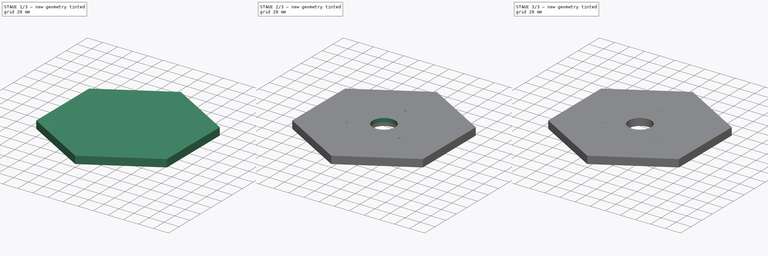
[diagram: build sequence overview — one tinted view per stage of 3, left to right]
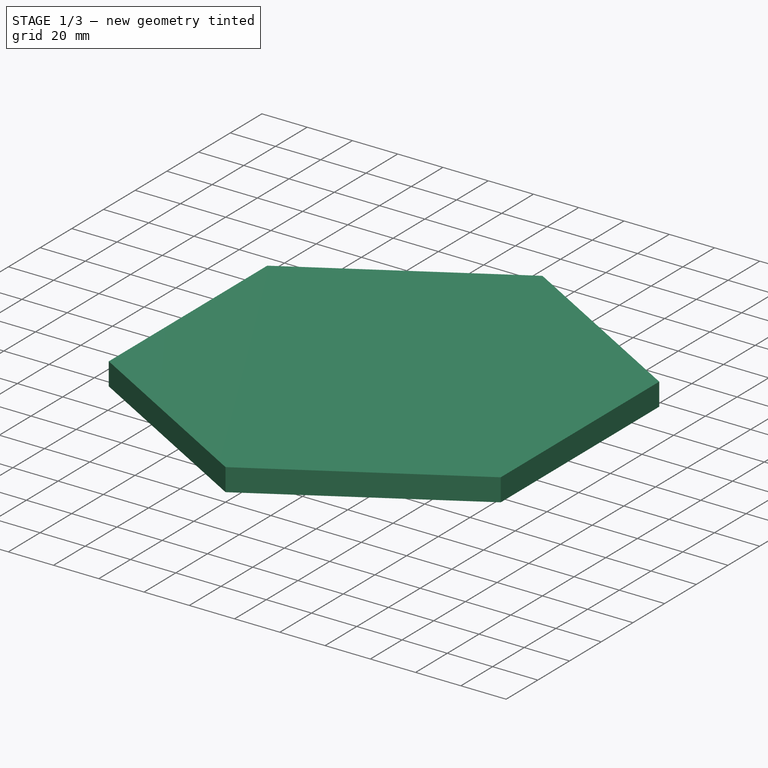
[diagram: stage 1 of 3 — iso view after this stage's code; geometry added in this stage tinted green]
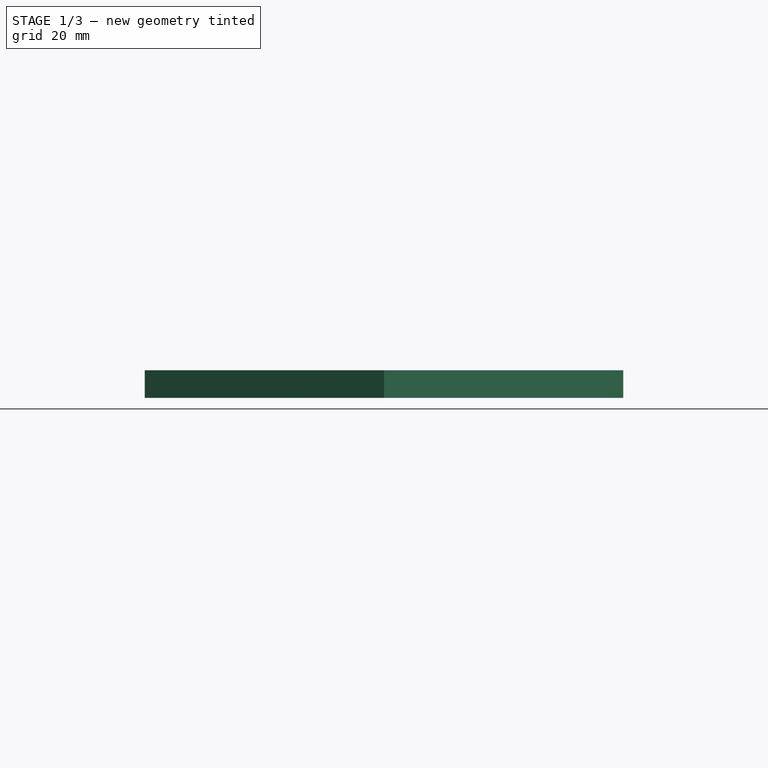
[diagram: stage 1 of 3 — front view after this stage's code; geometry added in this stage tinted green]
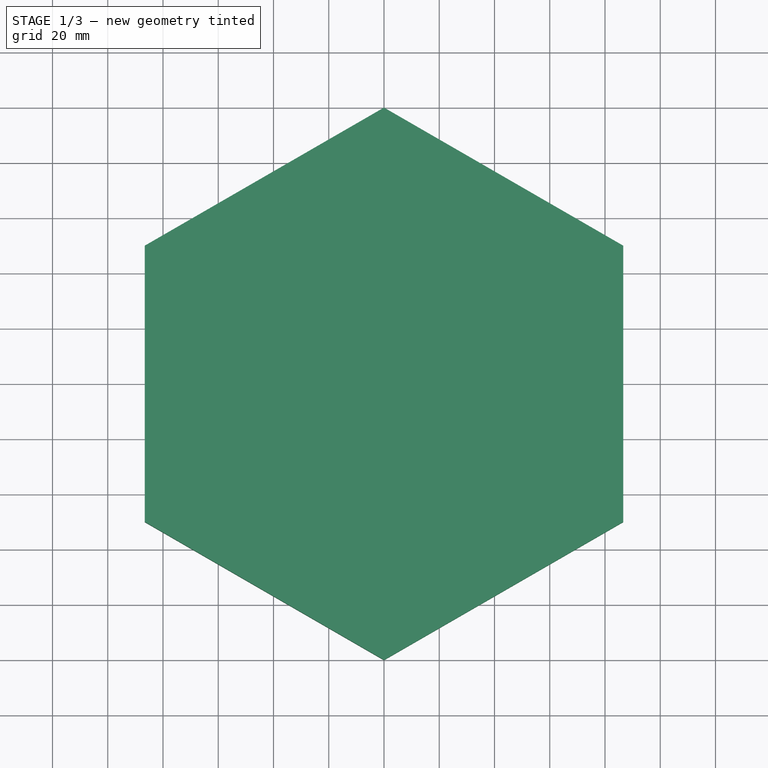
[diagram: stage 1 of 3 — top view after this stage's code; geometry added in this stage tinted green]
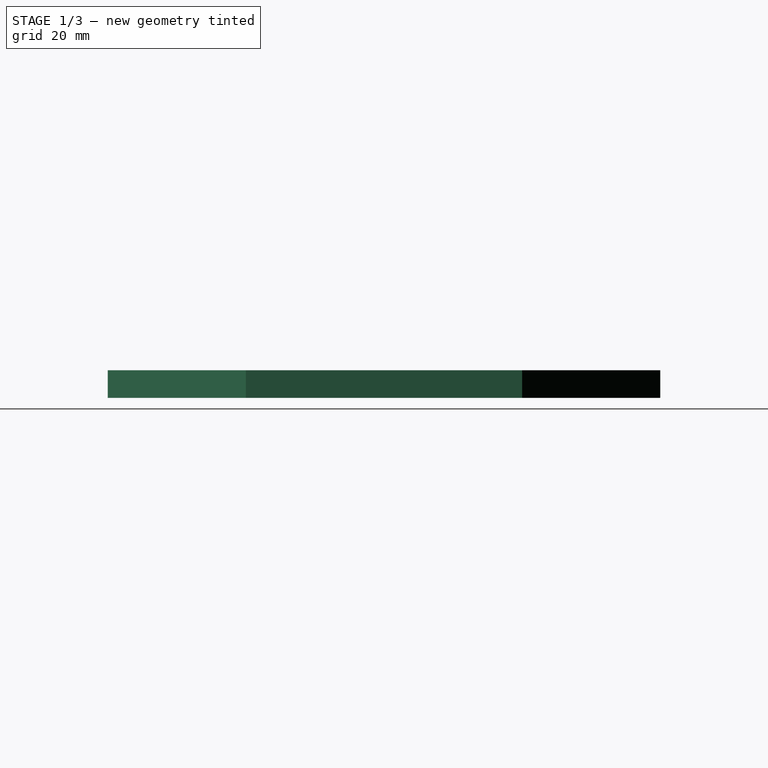
[diagram: stage 1 of 3 — right view after this stage's code; geometry added in this stage tinted green]
FCSTD DOCUMENT  (FreeCAD 0.20R29177 +426 (Git))
Label: middle_hexagon_bottom
License: All rights reserved
LicenseURL: http://en.wikipedia.org/wiki/All_rights_reserved
objects: Sketcher::SketchObject×6, PartDesign::Hole×3, PartDesign::Pocket×2, PartDesign::Pad×1, PartDesign::Body×1
note: 19 computed .brp shape members not serialized (recipe doc carries the construction recipe); baked Part::Feature solids carry a one-line shape summary decoded from their .brp

FEATURE [Sketcher::SketchObject] Sketch007
  FullyConstrained = true
  MapMode = 5
  sketch-geometry (7):
    g0: LineSegment StartX=86.6025 StartY=50 StartZ=0 EndX=-1.42e-14 EndY=100 EndZ=0
    g1: LineSegment StartX=-1.42e-14 StartY=100 StartZ=0 EndX=-86.6025 EndY=50 EndZ=0
    g2: LineSegment StartX=-86.6025 StartY=50 StartZ=0 EndX=-86.6025 EndY=-50 EndZ=0
    g3: LineSegment StartX=-86.6025 StartY=-50 StartZ=0 EndX=0 EndY=-100 EndZ=0
    g4: LineSegment StartX=0 StartY=-100 StartZ=0 EndX=86.6025 EndY=-50 EndZ=0
    g5: LineSegment StartX=86.6025 StartY=-50 StartZ=0 EndX=86.6025 EndY=50 EndZ=0
    g6: Circle CenterX=0 CenterY=0 CenterZ=0 NormalX=0 NormalY=0 NormalZ=1 AngleXU=0 Radius=100
  constraints (16):
    c: Coincident(g0,g1)
    c: Coincident(g1,g2)
    c: Coincident(g2,g3)
    c: Coincident(g3,g4)
    c: Coincident(g4,g5)
    c: Coincident(g5,g0)
    c: Equal(g0, g1-g5) x5
    c: PointOnObject(g0,g6)
    c: PointOnObject(g1,g6)
    c: PointOnObject(g2,g6)
    c: PointOnObject(g3,g6)
    c: PointOnObject(g4,g6)
    c: PointOnObject(g5,g6)
    c: Coincident(g6,g-1)
    c: PointOnObject(g3,g-2)
    c: DistanceY(g5,g5) = 100
FEATURE [PartDesign::Pad] Pad002
  Direction = (0,0,1)
  Length = 10
  Length2 = 10
  Profile = -> Sketch007
  ReferenceAxis = -> Sketch007 [N_Axis]
  Refine = true
  Type = 0
FEATURE [Sketcher::SketchObject] Sketch008  label="lock001"
  FullyConstrained = true
  MapMode = 5
  Placement = pos=(0,0,10) rot=(0,0,1;0rad)
  sketch-geometry (1):
    g0: Circle CenterX=0 CenterY=0 CenterZ=0 NormalX=0 NormalY=0 NormalZ=1 AngleXU=0 Radius=15
  constraints (2):
    c: Coincident(g0,g-1)
    c: Diameter(g0) = 30
FEATURE [Sketcher::SketchObject] Sketch009  label="press-fit"
  FullyConstrained = true
  MapMode = 5
  Placement = pos=(0,0,0) rot=(1,0,0;3.14159rad)
  sketch-geometry (1):
    g0: Circle CenterX=0 CenterY=0 CenterZ=0 NormalX=0 NormalY=0 NormalZ=1 AngleXU=0 Radius=15.975
  constraints (2):
    c: Coincident(g0,g-1)
    c: Diameter(g0) = 31.95
FEATURE [PartDesign::Pocket] Pocket007
  BaseFeature = -> Pad002
  Direction = (0,0,1)
  Length = 5
  Length2 = 5
  Profile = -> Sketch009
  ReferenceAxis = -> Sketch009 [N_Axis]
  Refine = true
  Type = 0
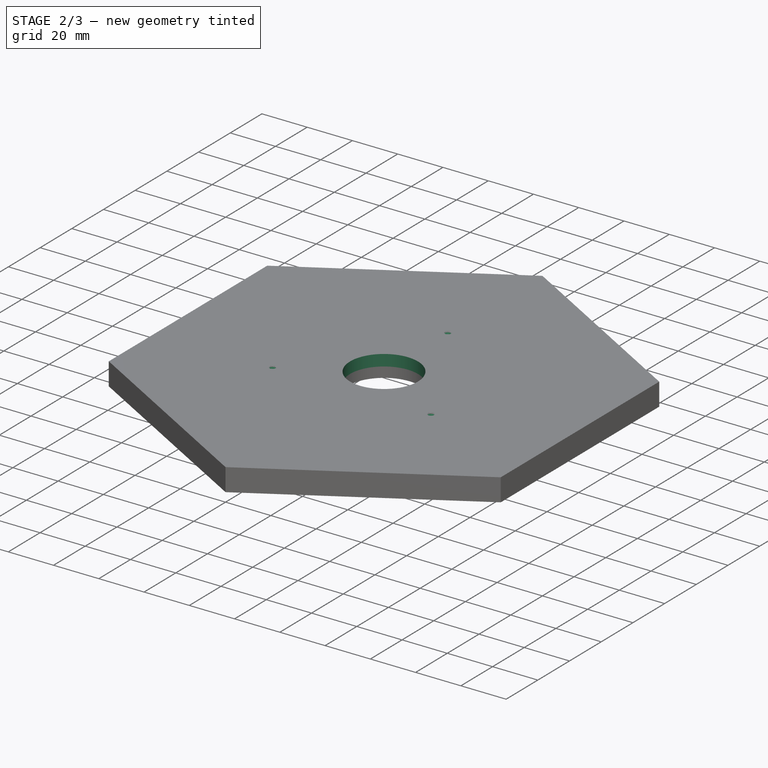
[diagram: stage 2 of 3 — iso view after this stage's code; geometry added in this stage tinted green]
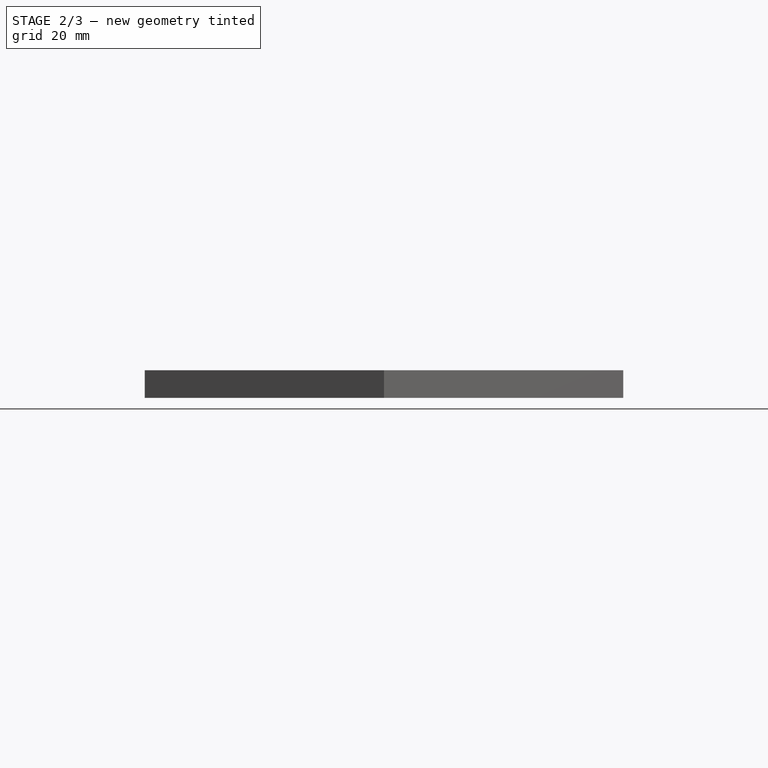
[diagram: stage 2 of 3 — front view after this stage's code; geometry added in this stage tinted green]
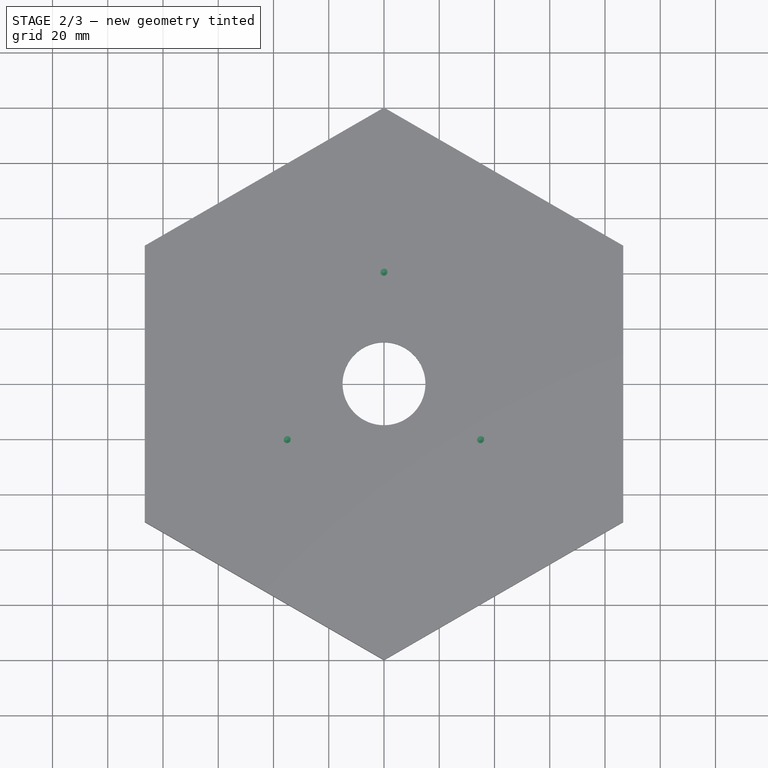
[diagram: stage 2 of 3 — top view after this stage's code; geometry added in this stage tinted green]
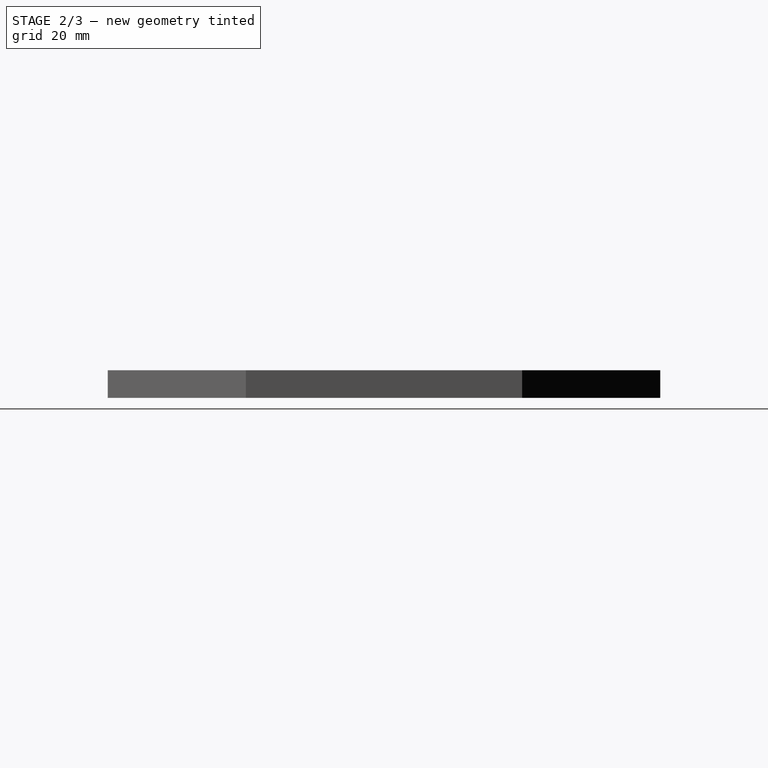
[diagram: stage 2 of 3 — right view after this stage's code; geometry added in this stage tinted green]
FEATURE [PartDesign::Pocket] Pocket008
  BaseFeature = -> Pocket007
  Direction = (0,0,-1)
  Length = 5
  Length2 = 5
  Profile = -> Sketch008
  ReferenceAxis = -> Sketch008 [N_Axis]
  Refine = true
  Type = 0
FEATURE [Sketcher::SketchObject] Sketch024
  FullyConstrained = true
  MapMode = 5
  Placement = pos=(0,0,10) rot=(0,0,1;0rad)
  sketch-geometry (7):
    g0: LineSegment StartX=35 StartY=-20.2073 StartZ=0 EndX=0 EndY=40.4145 EndZ=0
    g1: LineSegment StartX=0 StartY=40.4145 StartZ=0 EndX=-35 EndY=-20.2073 EndZ=0
    g2: LineSegment StartX=-35 StartY=-20.2073 StartZ=0 EndX=35 EndY=-20.2073 EndZ=0
    g3: Circle CenterX=0 CenterY=0 CenterZ=0 NormalX=0 NormalY=0 NormalZ=1 AngleXU=0 Radius=40.4145
    g4: Circle CenterX=35 CenterY=-20.2073 CenterZ=0 NormalX=0 NormalY=0 NormalZ=1 AngleXU=0 Radius=3
    g5: Circle CenterX=0 CenterY=40.4145 CenterZ=0 NormalX=0 NormalY=0 NormalZ=1 AngleXU=0 Radius=3
    g6: Circle CenterX=-35 CenterY=-20.2073 CenterZ=0 NormalX=0 NormalY=0 NormalZ=1 AngleXU=0 Radius=3
  constraints (17):
    c: Coincident(g0,g1)
    c: Coincident(g1,g2)
    c: Coincident(g2,g0)
    c: Equal(g0,g1)
    c: Equal(g0,g2)
    c: PointOnObject(g0,g3)
    c: PointOnObject(g1,g3)
    c: PointOnObject(g2,g3)
    c: Coincident(g3,g-1)
    c: PointOnObject(g0,g-2)
    c: DistanceX(g2,g2) = 70
    c: Coincident(g4,g0)
    c: Diameter(g4) = 6
    c: Coincident(g5,g0)
    c: Coincident(g6,g1)
    c: Equal(g6,g5)
    c: Equal(g5,g4)
FEATURE [PartDesign::Hole] Hole004
  BaseFeature = -> Pocket008
  CustomThreadClearance = 0
  Depth = 7
  DepthType = 0
  Diameter = 2.52
  DrillForDepth = true
  DrillPoint = 1
  DrillPointAngle = 118
  HoleCutCountersinkAngle = 90
  HoleCutCustomValues = false
  HoleCutDepth = 0
  HoleCutDiameter = 6.1
  HoleCutType = 0
  ModelThread = true
  Profile = -> Sketch024
  Refine = true
  Tapered = false
  TaperedAngle = 90
  ThreadClass = 0
  ThreadDepth = 7
  ThreadDepthType = 0
  ThreadDirection = 0
  ThreadFit = 0
  ThreadSize = 9
  ThreadType = 1
  Threaded = true
  UseCustomThreadClearance = false
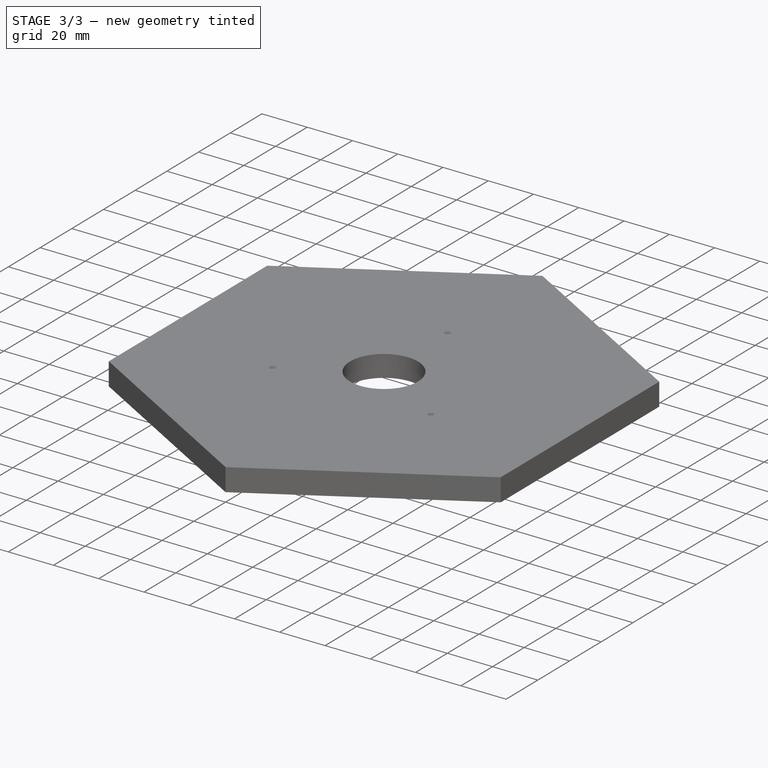
[diagram: stage 3 of 3 — iso view after this stage's code; geometry added in this stage tinted green]
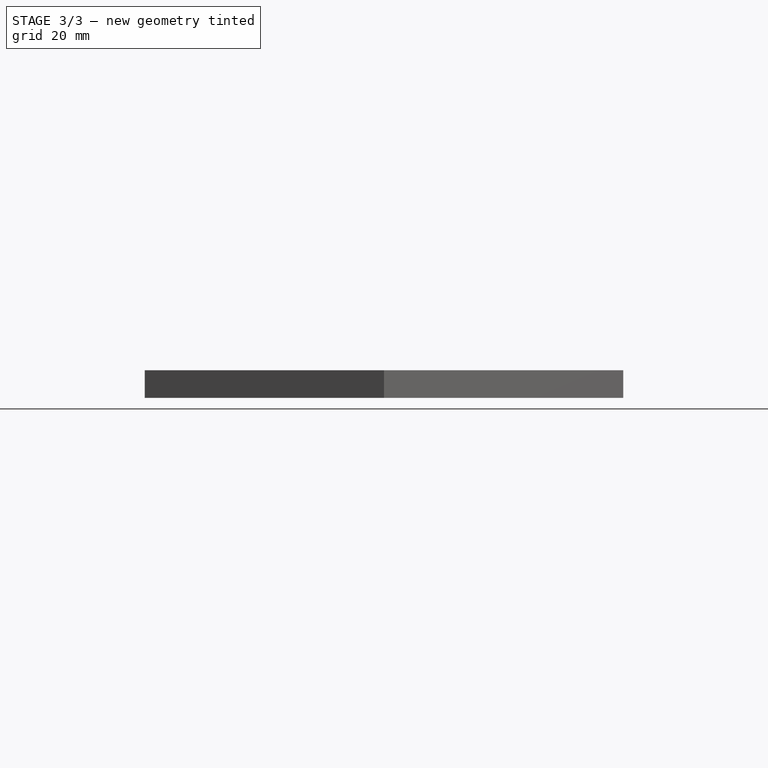
[diagram: stage 3 of 3 — front view after this stage's code; geometry added in this stage tinted green]
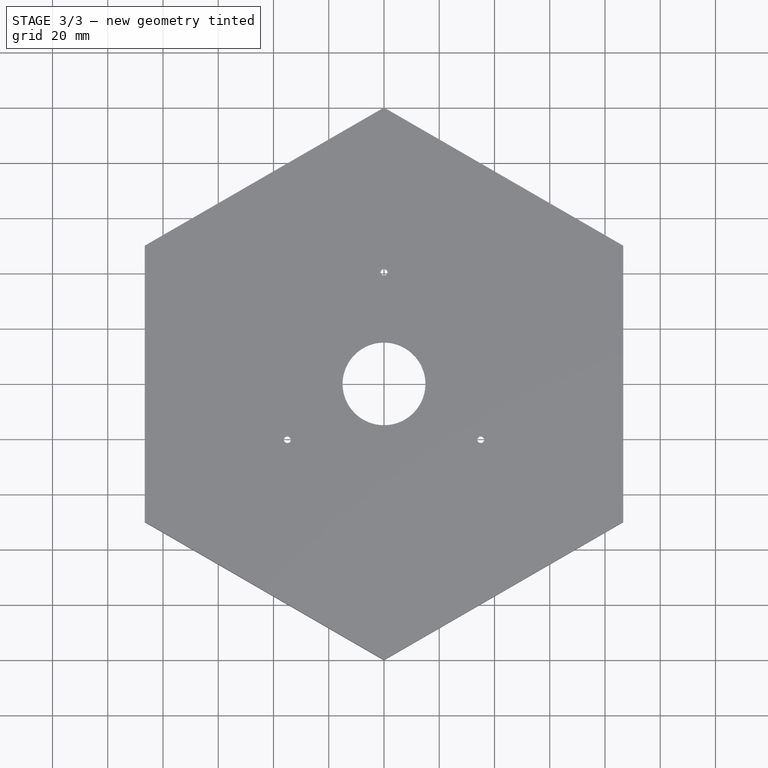
[diagram: stage 3 of 3 — top view after this stage's code; geometry added in this stage tinted green]
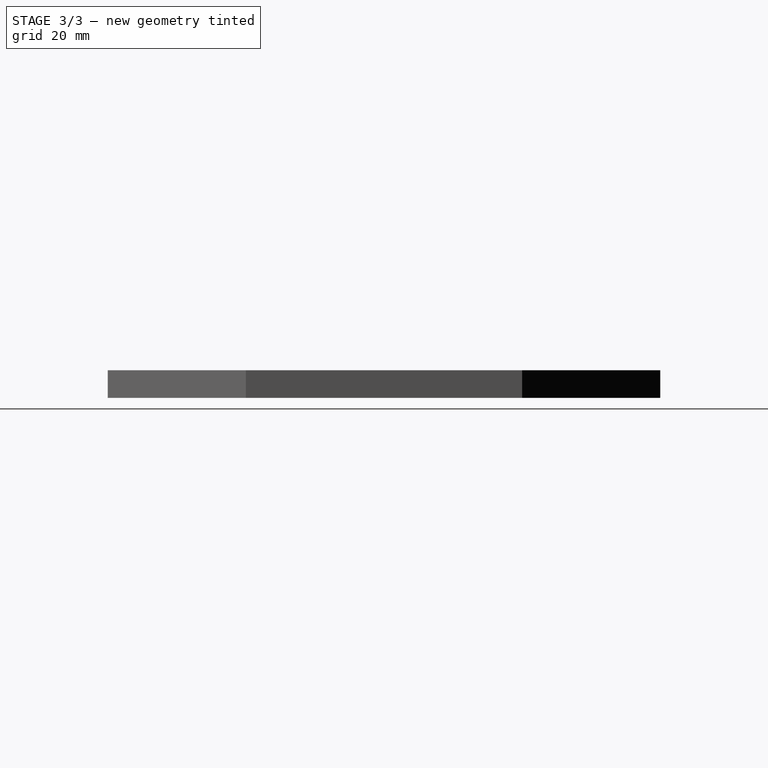
[diagram: stage 3 of 3 — right view after this stage's code; geometry added in this stage tinted green]
FEATURE [Sketcher::SketchObject] Sketch066
  FullyConstrained = true
  MapMode = 5
  Placement = pos=(0,0,0) rot=(1,0,0;3.14159rad)
  Support = -> [Hole004]
  sketch-geometry (7):
    g0: LineSegment StartX=35 StartY=-20.2073 StartZ=0 EndX=0 EndY=40.4145 EndZ=0
    g1: LineSegment StartX=0 StartY=40.4145 StartZ=0 EndX=-35 EndY=-20.2073 EndZ=0
    g2: LineSegment StartX=-35 StartY=-20.2073 StartZ=0 EndX=35 EndY=-20.2073 EndZ=0
    g3: Circle CenterX=0 CenterY=0 CenterZ=0 NormalX=0 NormalY=0 NormalZ=1 AngleXU=0 Radius=40.4145
    g4: Circle CenterX=35 CenterY=-20.2073 CenterZ=0 NormalX=0 NormalY=0 NormalZ=1 AngleXU=0 Radius=3
    g5: Circle CenterX=0 CenterY=40.4145 CenterZ=0 NormalX=0 NormalY=0 NormalZ=1 AngleXU=0 Radius=3
    g6: Circle CenterX=-35 CenterY=-20.2073 CenterZ=0 NormalX=0 NormalY=0 NormalZ=1 AngleXU=0 Radius=3
  constraints (17):
    c: Coincident(g0,g1)
    c: Coincident(g1,g2)
    c: Coincident(g2,g0)
    c: Equal(g0,g1)
    c: Equal(g0,g2)
    c: PointOnObject(g0,g3)
    c: PointOnObject(g1,g3)
    c: PointOnObject(g2,g3)
    c: Coincident(g3,g-1)
    c: PointOnObject(g0,g-2)
    c: DistanceX(g2,g2) = 70
    c: Coincident(g4,g0)
    c: Coincident(g5,g0)
    c: Coincident(g6,g1)
    c: Equal(g6,g4)
    c: Equal(g4,g5)
    c: Diameter(g5) = 6
FEATURE [PartDesign::Hole] Hole005
  BaseFeature = -> Hole004
  CustomThreadClearance = 0
  Depth = 7
  DepthType = 0
  Diameter = 2.52
  DrillForDepth = true
  DrillPoint = 1
  DrillPointAngle = 118
  HoleCutCountersinkAngle = 90
  HoleCutCustomValues = false
  HoleCutDepth = 0
  HoleCutDiameter = 6.1
  HoleCutType = 0
  ModelThread = true
  Profile = -> Sketch066
  Refine = true
  Tapered = false
  TaperedAngle = 90
  ThreadClass = 0
  ThreadDepth = 7
  ThreadDepthType = 0
  ThreadDirection = 0
  ThreadFit = 0
  ThreadSize = 9
  ThreadType = 1
  Threaded = true
  UseCustomThreadClearance = false
FEATURE [Sketcher::SketchObject] Sketch070
  FullyConstrained = false
  MapMode = 5
  Placement = pos=(0,0,0) rot=(1,0,0;3.14159rad)
  Support = -> [Hole005]
  sketch-geometry (7):
    g0: LineSegment StartX=35 StartY=20.2073 StartZ=0 EndX=-35 EndY=20.2073 EndZ=0
    g1: LineSegment StartX=-35 StartY=20.2073 StartZ=0 EndX=0 EndY=-40.4145 EndZ=0
    g2: LineSegment StartX=0 StartY=-40.4145 StartZ=0 EndX=35 EndY=20.2073 EndZ=0
    g3: Circle CenterX=0 CenterY=0 CenterZ=0 NormalX=0 NormalY=0 NormalZ=1 AngleXU=0 Radius=40.4145
    g4: Circle CenterX=-35 CenterY=20.2073 CenterZ=0 NormalX=0 NormalY=0 NormalZ=1 AngleXU=0 Radius=3.38129
    g5: Circle CenterX=35 CenterY=20.2073 CenterZ=0 NormalX=0 NormalY=0 NormalZ=1 AngleXU=0 Radius=3.38129
    g6: Circle CenterX=0 CenterY=-40.4145 CenterZ=0 NormalX=0 NormalY=0 NormalZ=1 AngleXU=0 Radius=3.38129
  constraints (16):
    c: Coincident(g0,g1)
    c: Coincident(g1,g2)
    c: Coincident(g2,g0)
    c: Equal(g0,g1)
    c: Equal(g0,g2)
    c: PointOnObject(g0,g3)
    c: PointOnObject(g1,g3)
    c: PointOnObject(g2,g3)
    c: PointOnObject(g1,g-2)
    c: DistanceX(g0,g0) = 70
    c: Coincident(g3,g-1)
    c: Coincident(g4,g0)
    c: Coincident(g5,g0)
    c: Coincident(g6,g1)
    c: Equal(g6,g5)
    c: Equal(g5,g4)
FEATURE [PartDesign::Hole] Hole007
  BaseFeature = -> Hole005
  CustomThreadClearance = 0
  Depth = 7
  DepthType = 0
  Diameter = 2.52
  DrillForDepth = true
  DrillPoint = 1
  DrillPointAngle = 118
  HoleCutCountersinkAngle = 90
  HoleCutCustomValues = false
  HoleCutDepth = 0
  HoleCutDiameter = 6.1
  HoleCutType = 0
  ModelThread = true
  Profile = -> Sketch070
  Refine = true
  Tapered = false
  TaperedAngle = 90
  ThreadClass = 0
  ThreadDepth = 7
  ThreadDepthType = 0
  ThreadDirection = 0
  ThreadFit = 0
  ThreadSize = 9
  ThreadType = 1
  Threaded = true
  UseCustomThreadClearance = false
FEATURE [PartDesign::Body] Body002  label="mid_hexagon_bottom"
  Group = -> [Sketch007,Pad002,Sketch008,Sketch009,Pocket007,Pocket008,Sketch024,Hole004,Sketch066,Hole005,Sketch070,Hole007]
  Origin = -> Origin002
  Placement = pos=(0,0,0) rot=(1,0,0;3.14159rad)
  Tip = -> Hole007
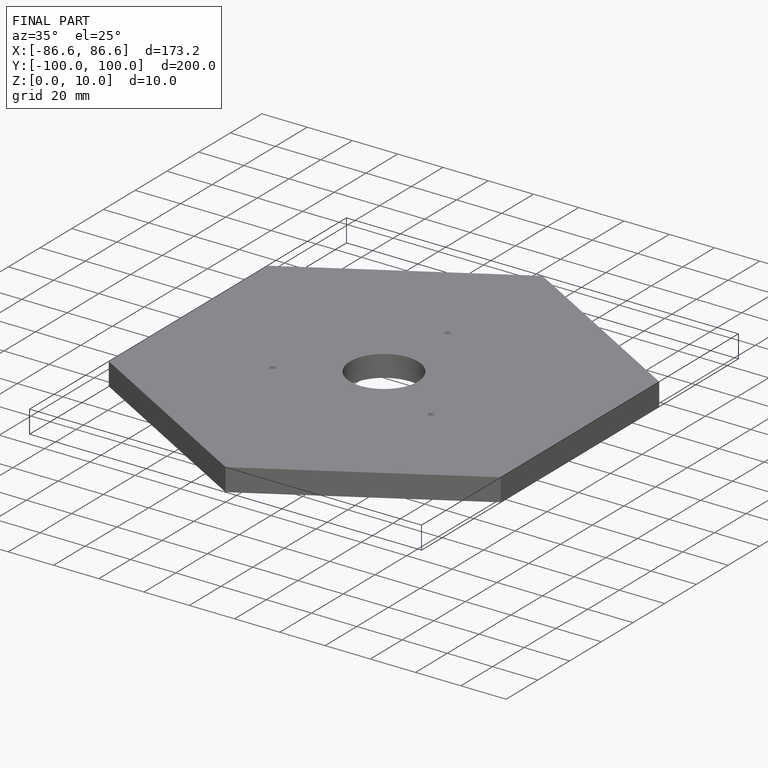
[diagram: finished part — iso view with bounding-box wireframe]
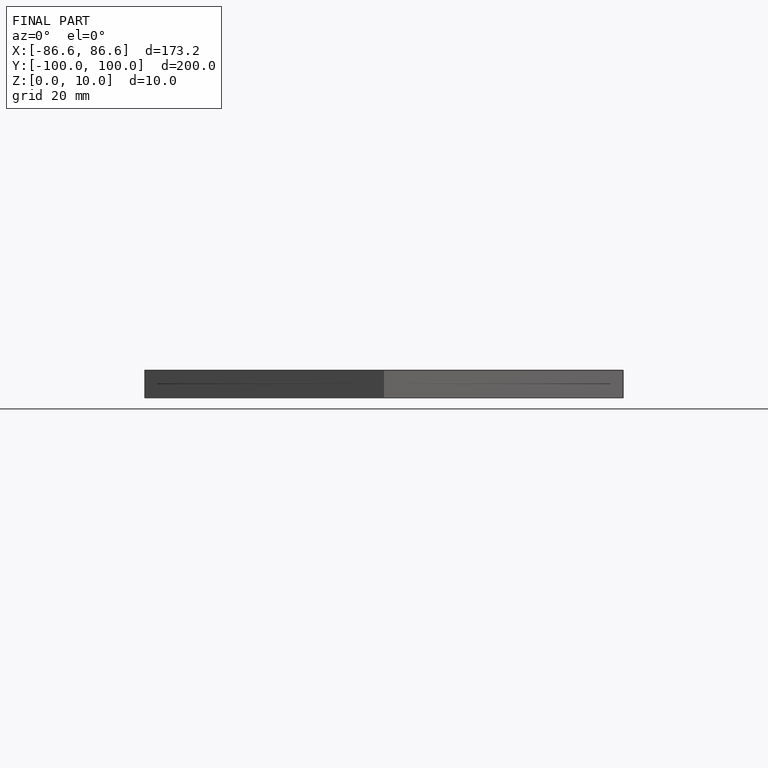
[diagram: finished part — front view with bounding-box wireframe]
